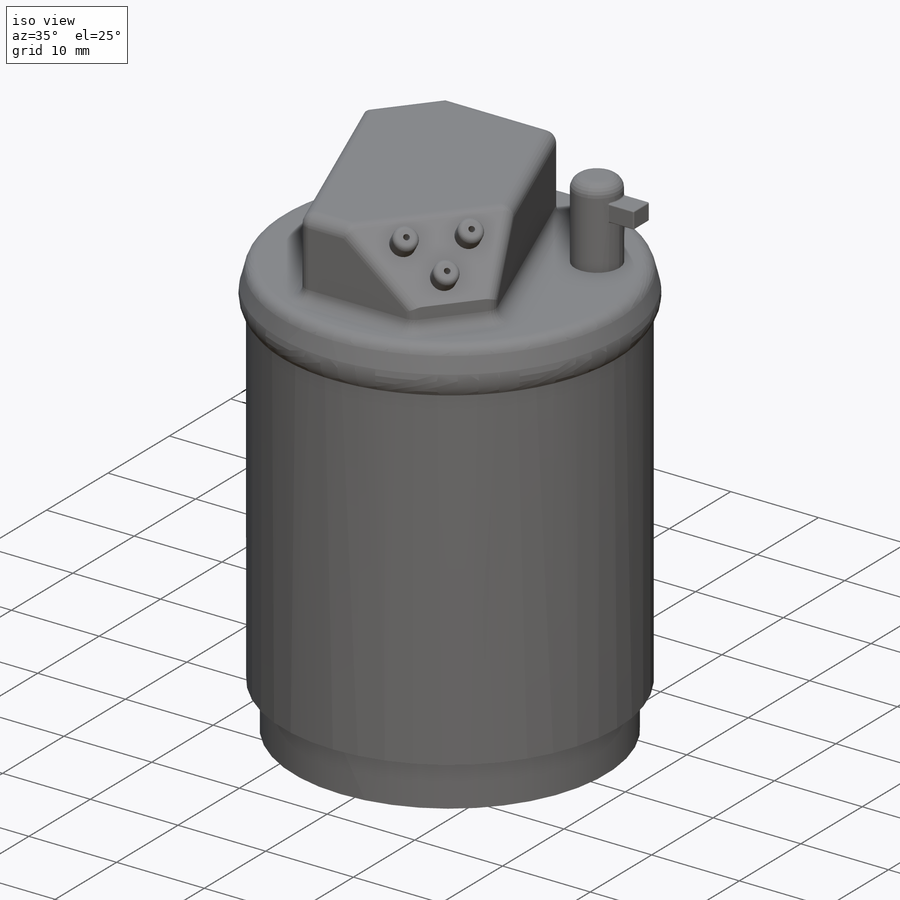
[diagram: iso view]
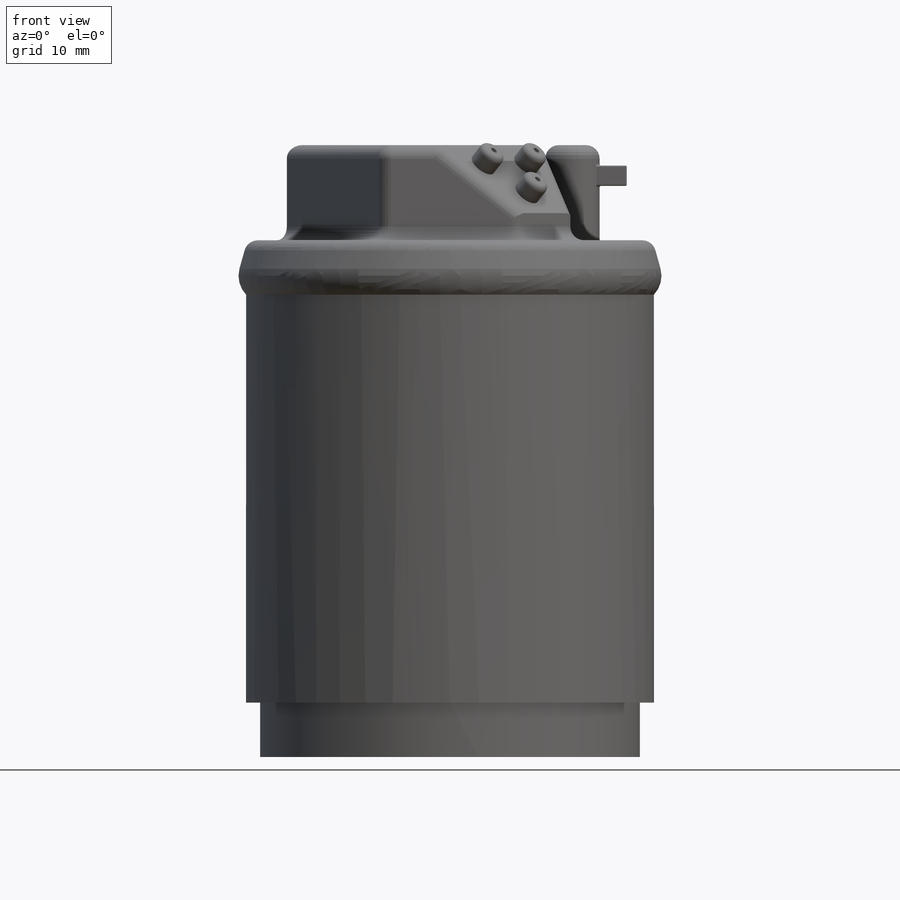
[diagram: front view]
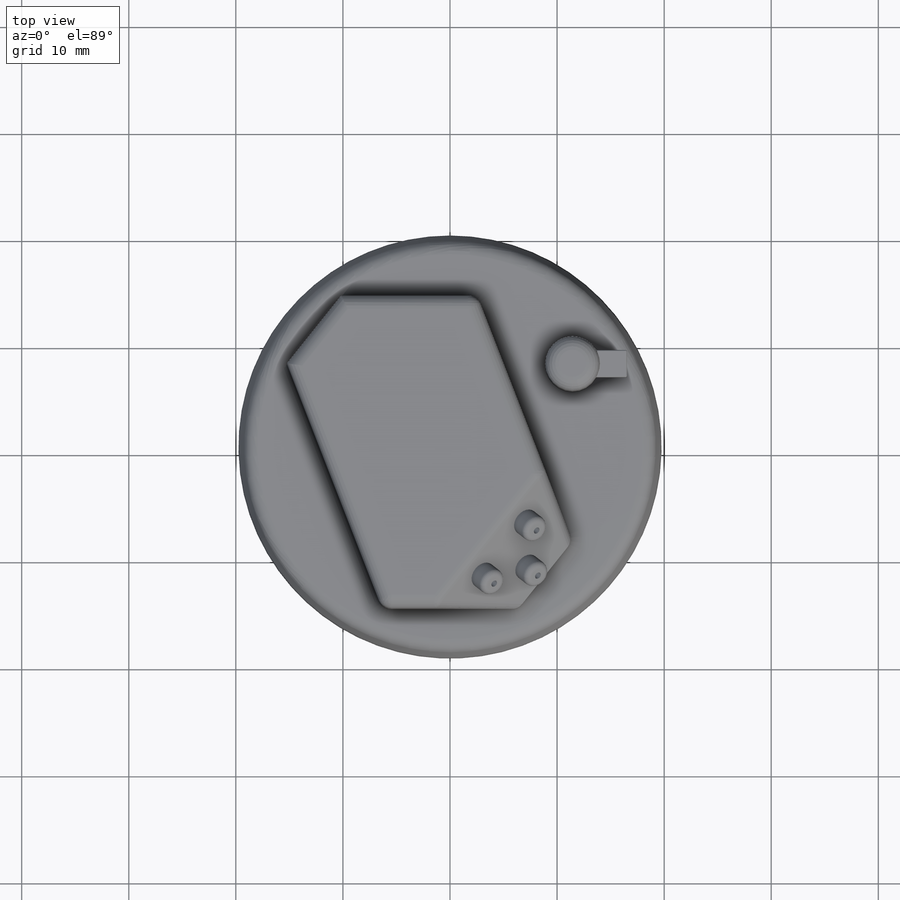
[diagram: top view]
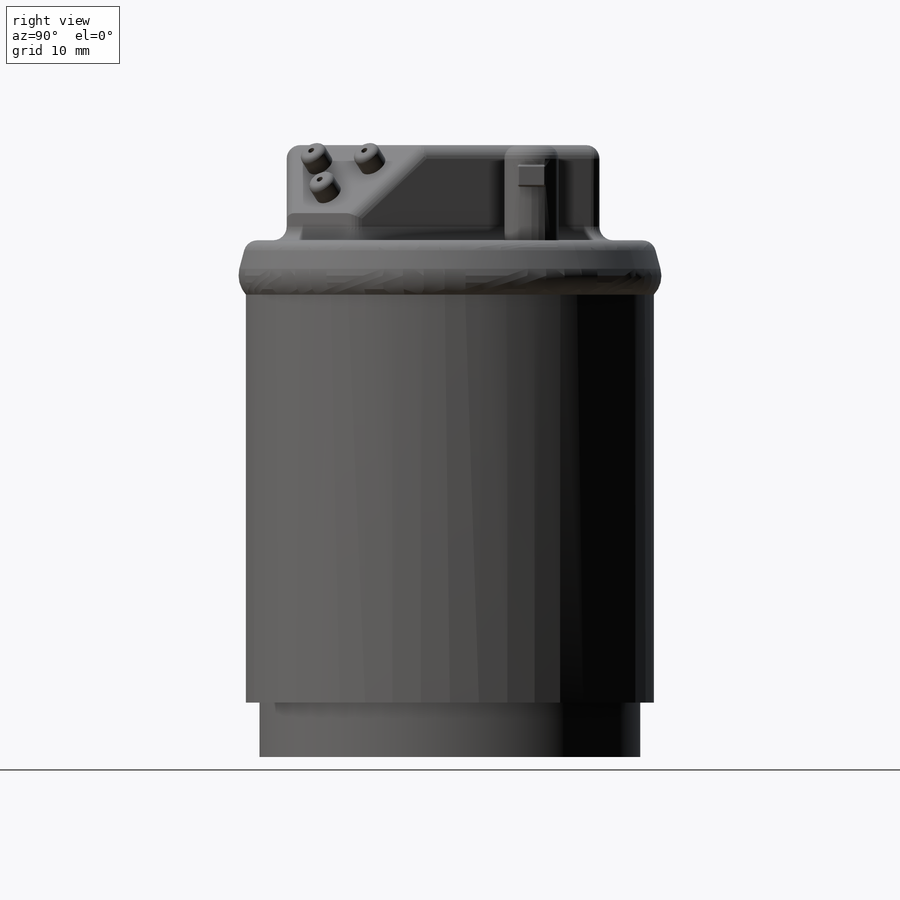
[diagram: right view]
SOLIDWORKS PART (.sldprt)
format: sldprt  version: not decoded by parser v0  size: 701,440 bytes
history: native  units: mm
features: sketch x11, fillet x10, extrude x7, cut_extrude x4, chamfer x2, plane x2, material x1 (+13 scaffold rows collapsed)
feature tree (50):
  scaffold x13  (default folders/planes/origin — collapsed)
  material  "Material <not specified>"
  sketch  "Sketch1"  dims[D1=38.1mm D2=2.54mm]
  extrude  "Boss-Extrude1"  Depth=38.1mm
  sketch  "Sketch2"  dims[D1=1.27mm]
  extrude  "Boss-Extrude2"  Depth=5.08mm
  sketch  "Sketch3"  dims[D1=40.64mm]
  extrude  "Boss-Extrude3"  Depth=5.08mm
  fillet  "Fillet1"  Radius=2.54mm
  fillet  "Fillet2"  Radius=1.27mm
  sketch  "Sketch4"  dims[D8=5.08mm D1=13.97mm D2=12.7mm D3=2.54mm D4=6.35mm D5=5.08mm D6=22.86mm D7=8.89mm]
  extrude  "Boss-Extrude4"  Depth=8.89mm
  fillet  "Fillet3"  Radius=1.27mm
  sketch  "Sketch5"  dims[D1=6.35mm D2=5.08mm]
  extrude  "Boss-Extrude5"  Depth=8.89mm
  chamfer  "Chamfer1"  Distance=7.62mm Angle=10deg
  fillet  "Fillet4"  Radius=1.27mm
  plane  "Plane1"  Offset=3.81mm
  sketch  "Sketch6"  dims[D1=5.08mm]
  extrude  "Boss-Extrude6"  Depth=1.905mm
  fillet  "Fillet5"  Radius=0.127mm
  chamfer  "Chamfer2"  Distance=6.35mm Angle=45deg
  fillet  "Fillet6"  Radius=1.27mm
  sketch  "Sketch7"  dims[D4=2.54mm D1=4.572mm D2=1.27mm D3=6.35mm D5=3.81mm]
  extrude  "Boss-Extrude7"  Depth=1.905mm
  fillet  "Fillet7"  Radius=0.508mm
  sketch  "Sketch8"  dims[D1=0.635mm]
  cut_extrude  "Cut-Extrude3"  Depth=3.81mm
  sketch  "Sketch9"  dims[D1=1.524mm]
  cut_extrude  "Cut-Extrude4"  Depth=6.35mm
  fillet  "Fillet8"  Radius=0.0254mm
  fillet  "Fillet9"  Radius=0.508mm
  sketch  "Sketch10"  dims[D1=6.35mm]
  cut_extrude  "Cut-Extrude5"  Depth=7.62mm
  plane  "Plane2"  Offset=3.048mm
  sketch  "Sketch12"  dims[D1=2.032mm]
  cut_extrude  "Cut-Extrude6"  Depth=17.78mm
  fillet  "Fillet10"  Radius=0.0254mm
decode coverage: 34 of 34 modeling features carry decoded parameters
note: suppression state not decoded; provenance and decode notes live in map.json
